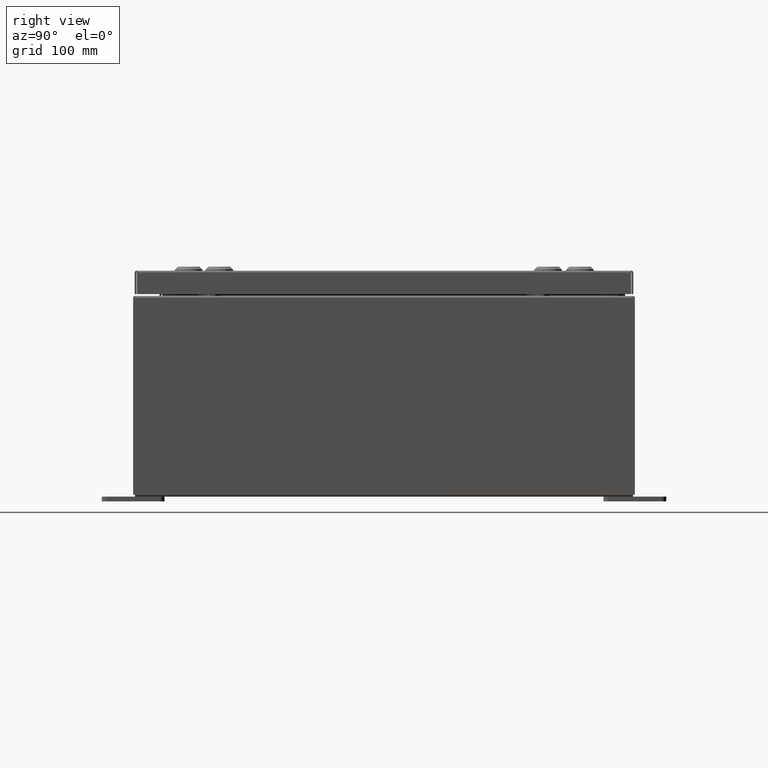
[diagram: clean part render]
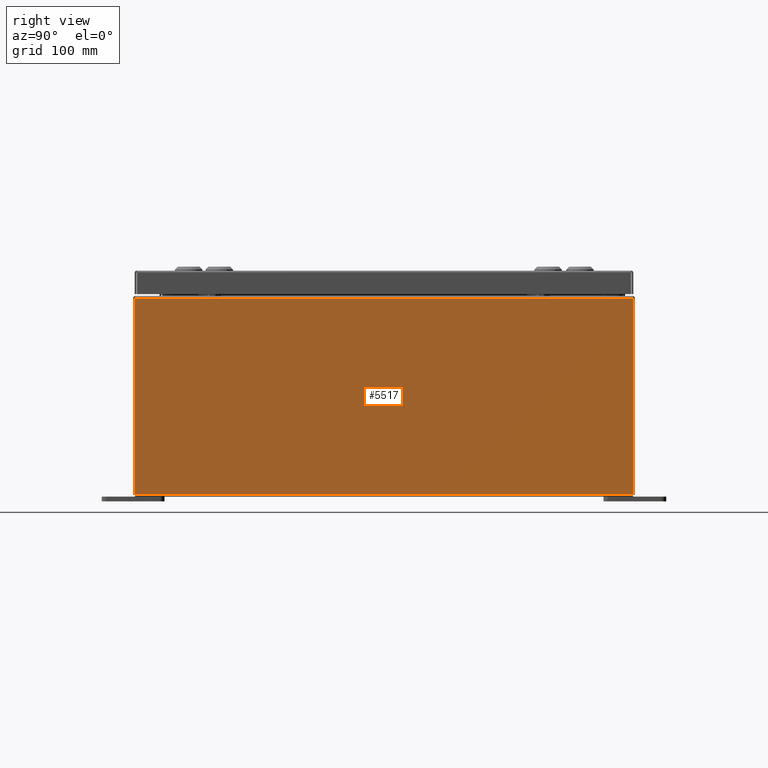
[diagram: same view with one face highlighted and labeled with its STEP entity id]
A machine part, right view. The second image highlights one B-rep face of the part: STEP entity #5517.
In plain terms, the highlighted planar face has unit normal (-1, 0, 0).
Its self-contained STEP definition (entity closure, byte-faithful):
#1494 = CARTESIAN_POINT ( 'NONE',  ( 8.000000000000030200, -9.925300000000001800, 7.837599999999999200 ) ) ;
#5517 = ADVANCED_FACE ( 'NONE', ( #6160 ), #60738, .F. ) ;
#5536 = LINE ( 'NONE', #19455, #29931 ) ;
#5972 = VERTEX_POINT ( 'NONE', #1494 ) ;
#6160 = FACE_OUTER_BOUND ( 'NONE', #43264, .T. ) ;
#9987 = ORIENTED_EDGE ( 'NONE', *, *, #35041, .F. ) ;
#10467 = CARTESIAN_POINT ( 'NONE',  ( 8.000000000000001800, 9.925299999999998200, -2.783678421777468900E-014 ) ) ;
#10649 = DIRECTION ( 'NONE',  ( -0.0000000000000000000, -1.000000000000000000, -0.0000000000000000000 ) ) ;
#11887 = ORIENTED_EDGE ( 'NONE', *, *, #34858, .T. ) ;
#12638 = DIRECTION ( 'NONE',  ( -1.000000000000000000, 0.0000000000000000000, 3.446996320220386900E-015 ) ) ;
#15425 = LINE ( 'NONE', #54461, #39795 ) ;
#18090 = VECTOR ( 'NONE', #51032, 39.37007874015748100 ) ;
#19455 = CARTESIAN_POINT ( 'NONE',  ( 8.000000000000001800, -9.925300000000001800, -2.783678421777468900E-014 ) ) ;
#19651 = LINE ( 'NONE', #55905, #18090 ) ;
#22253 = VERTEX_POINT ( 'NONE', #62292 ) ;
#23866 = VECTOR ( 'NONE', #49394, 39.37007874015748100 ) ;
#24257 = CARTESIAN_POINT ( 'NONE',  ( 8.000000000000030200, 9.925299999999991100, 7.837599999999999200 ) ) ;
#29225 = DIRECTION ( 'NONE',  ( -3.446996320220387700E-015, 0.0000000000000000000, -1.000000000000000000 ) ) ;
#29931 = VECTOR ( 'NONE', #29225, 39.37007874015748100 ) ;
#30360 = EDGE_CURVE ( 'NONE', #52098, #50191, #36776, .T. ) ;
#34858 = EDGE_CURVE ( 'NONE', #5972, #22253, #5536, .T. ) ;
#35041 = EDGE_CURVE ( 'NONE', #52098, #22253, #15425, .T. ) ;
#36776 = LINE ( 'NONE', #10467, #23866 ) ;
#39795 = VECTOR ( 'NONE', #10649, 39.37007874015748100 ) ;
#41430 = EDGE_CURVE ( 'NONE', #50191, #5972, #19651, .T. ) ;
#43264 = EDGE_LOOP ( 'NONE', ( #56310, #11887, #9987, #51358 ) ) ;
#46697 = DIRECTION ( 'NONE',  ( 3.446996320220386900E-015, 0.0000000000000000000, 1.000000000000000000 ) ) ;
#47417 = CARTESIAN_POINT ( 'NONE',  ( 8.000000000000001800, 9.925299999999996500, 0.01299999999999984700 ) ) ;
#49394 = DIRECTION ( 'NONE',  ( 3.446996320220387700E-015, 0.0000000000000000000, 1.000000000000000000 ) ) ;
#50191 = VERTEX_POINT ( 'NONE', #24257 ) ;
#51032 = DIRECTION ( 'NONE',  ( -0.0000000000000000000, -1.000000000000000000, -0.0000000000000000000 ) ) ;
#51358 = ORIENTED_EDGE ( 'NONE', *, *, #30360, .T. ) ;
#52098 = VERTEX_POINT ( 'NONE', #47417 ) ;
#54461 = CARTESIAN_POINT ( 'NONE',  ( 8.000000000000001800, -9.925300000000001800, 0.01299999999999984700 ) ) ;
#55604 = CARTESIAN_POINT ( 'NONE',  ( 8.000000000000001800, 0.0000000000000000000, -2.783678421777468900E-014 ) ) ;
#55905 = CARTESIAN_POINT ( 'NONE',  ( 8.000000000000030200, 9.925299999999992900, 7.837599999999999200 ) ) ;
#56310 = ORIENTED_EDGE ( 'NONE', *, *, #41430, .T. ) ;
#59162 = AXIS2_PLACEMENT_3D ( 'NONE', #55604, #12638, #46697 ) ;
#60738 = PLANE ( 'NONE',  #59162 ) ;
#62292 = CARTESIAN_POINT ( 'NONE',  ( 8.000000000000001800, -9.925300000000001800, 0.01299999999999984800 ) ) ;